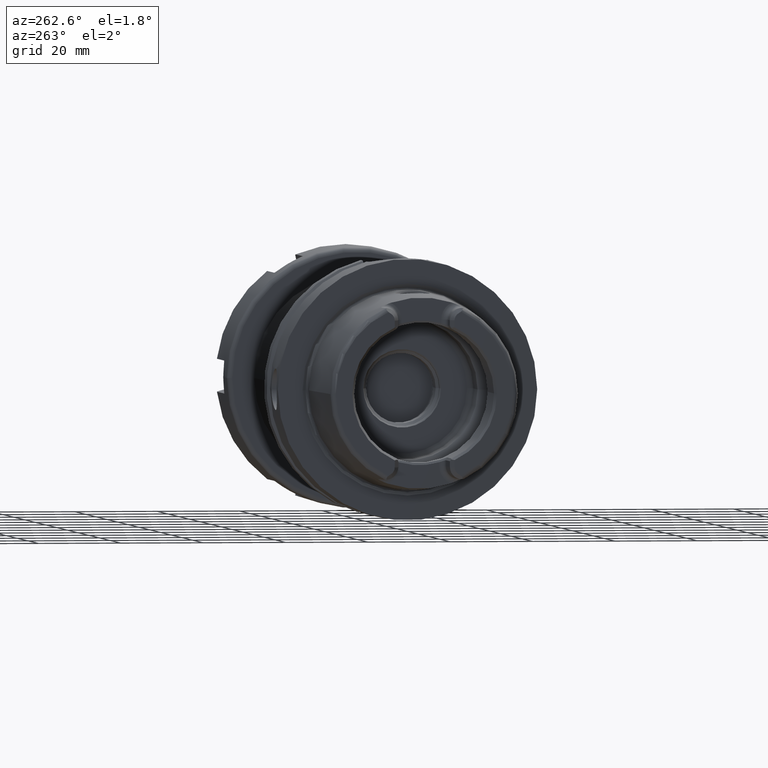
[diagram: clean part render]
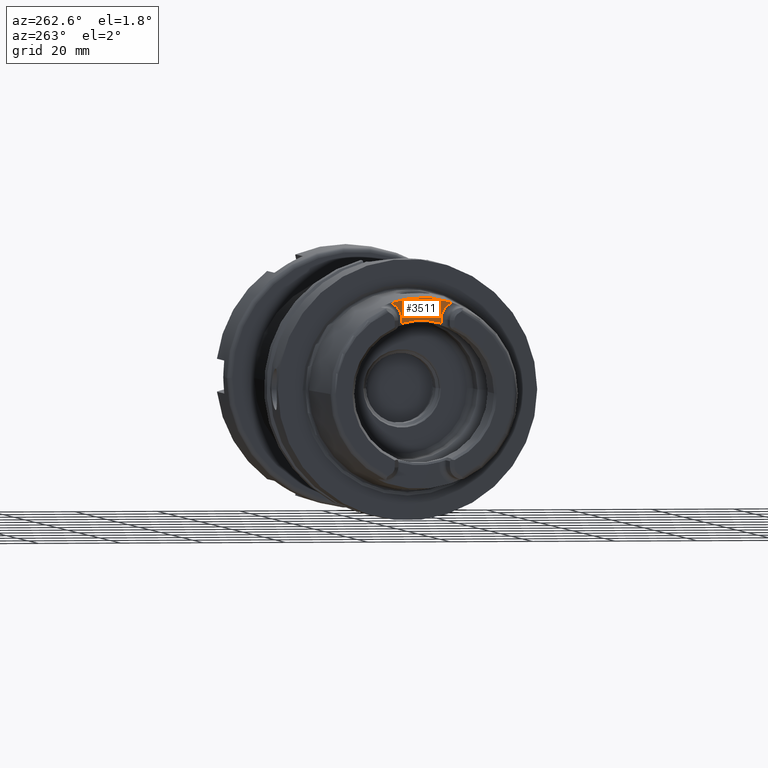
[diagram: same view with one face highlighted and labeled with its STEP entity id]
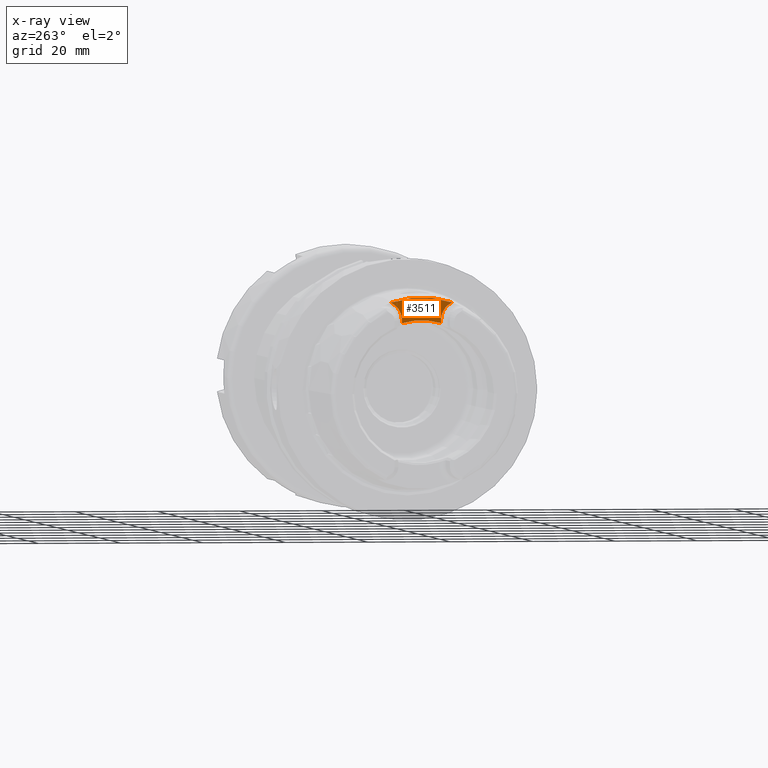
[diagram: x-ray of the same camera — body ghosted, the highlighted face saturated]
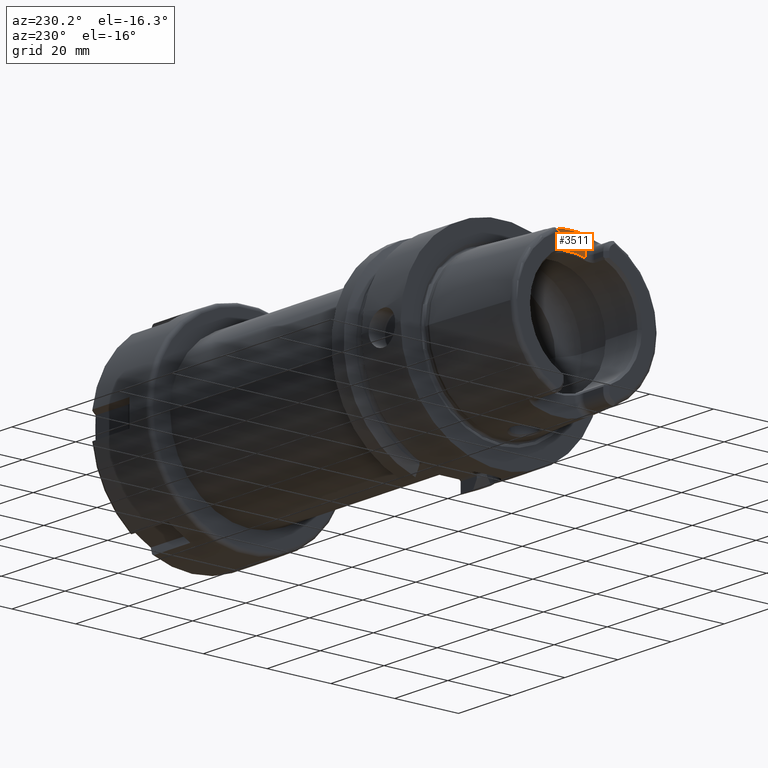
[diagram: same view with one face highlighted and labeled with its STEP entity id]
A machine part, auxiliary view. The second image highlights one B-rep face of the part: STEP entity #3511.
The next image is the same camera in x-ray: the body ghosted, the highlighted face saturated — about 0% of this face is hidden behind the body in this view.
A second angle (auxiliary view) of the same face is appended — the face is thin or edge-on in the first view.
In plain terms, the highlighted planar face has unit normal (-1, 0, 0).
Its self-contained STEP definition (entity closure, byte-faithful):
#9=CARTESIAN_POINT('',(-2.6E1,0.E0,0.E0));
#10=DIRECTION('',(1.E0,0.E0,0.E0));
#11=DIRECTION('',(0.E0,3.233021702202E-1,9.462957818415E-1));
#12=AXIS2_PLACEMENT_3D('',#9,#10,#11);
#508=DIRECTION('',(0.E0,1.645939623868E-11,1.E0));
#509=VECTOR('',#508,8.529199916087E-1);
#510=CARTESIAN_POINT('',(-2.6E1,4.769999999986E0,1.681708000839E1));
#511=LINE('',#510,#509);
#512=CARTESIAN_POINT('',(-2.6E1,9.27E0,1.767E1));
#513=DIRECTION('',(-1.E0,0.E0,0.E0));
#514=DIRECTION('',(0.E0,-1.E0,0.E0));
#515=AXIS2_PLACEMENT_3D('',#512,#513,#514);
#517=CARTESIAN_POINT('',(-2.6E1,-9.27E0,1.767E1));
#518=DIRECTION('',(-1.E0,0.E0,0.E0));
#519=DIRECTION('',(0.E0,4.062693958732E-1,9.137533463560E-1));
#520=AXIS2_PLACEMENT_3D('',#517,#518,#519);
#522=DIRECTION('',(0.E0,1.641566002193E-11,-1.E0));
#523=VECTOR('',#522,8.529199916084E-1);
#524=CARTESIAN_POINT('',(-2.6E1,-4.770000000001E0,1.767E1));
#525=LINE('',#524,#523);
#526=CARTESIAN_POINT('',(-2.6E1,4.769999999986E0,1.681708000839E1));
#527=CARTESIAN_POINT('',(-2.6E1,4.148583737710E0,1.699873969073E1));
#528=CARTESIAN_POINT('',(-2.6E1,2.894384068626E0,1.728890718055E1));
#529=CARTESIAN_POINT('',(-2.6E1,9.681288020921E-1,1.750922547308E1));
#530=CARTESIAN_POINT('',(-2.6E1,-9.681288020820E-1,1.750922547309E1));
#531=CARTESIAN_POINT('',(-2.6E1,-2.894384068607E0,1.728890718055E1));
#532=CARTESIAN_POINT('',(-2.6E1,-4.148583737703E0,1.699873969073E1));
#533=CARTESIAN_POINT('',(-2.6E1,-4.769999999987E0,1.681708000839E1));
#2661=CARTESIAN_POINT('',(-2.6E1,4.77E0,1.767E1));
#2663=VERTEX_POINT('',#2661);
#2665=CARTESIAN_POINT('',(-2.6E1,-4.77E0,1.767E1));
#2667=VERTEX_POINT('',#2665);
#2669=CARTESIAN_POINT('',(-2.6E1,7.441787718571E0,2.178189005860E1));
#2670=VERTEX_POINT('',#2669);
#2675=CARTESIAN_POINT('',(-2.6E1,-7.441787718571E0,2.178189005860E1));
#2676=VERTEX_POINT('',#2675);
#2713=CARTESIAN_POINT('',(-2.6E1,4.769999999986E0,1.681708000839E1));
#2714=VERTEX_POINT('',#2713);
#2715=CARTESIAN_POINT('',(-2.6E1,-4.769999999987E0,1.681708000839E1));
#2716=VERTEX_POINT('',#2715);
#3497=CARTESIAN_POINT('',(-2.6E1,0.E0,0.E0));
#3498=DIRECTION('',(-1.E0,0.E0,0.E0));
#3499=DIRECTION('',(0.E0,0.E0,1.E0));
#3500=AXIS2_PLACEMENT_3D('',#3497,#3498,#3499);
#3501=PLANE('',#3500);
#3502=ORIENTED_EDGE('',*,*,#3408,.T.);
#3503=ORIENTED_EDGE('',*,*,#3426,.T.);
#3504=ORIENTED_EDGE('',*,*,#3071,.T.);
#3505=ORIENTED_EDGE('',*,*,#3132,.T.);
#3506=ORIENTED_EDGE('',*,*,#3150,.T.);
#3508=ORIENTED_EDGE('',*,*,#3507,.F.);
#3509=EDGE_LOOP('',(#3502,#3503,#3504,#3505,#3506,#3508));
#3510=FACE_OUTER_BOUND('',#3509,.F.);
#3511=ADVANCED_FACE('',(#3510),#3501,.T.);
#13=CIRCLE('',#12,2.301805680272E1);
#516=CIRCLE('',#515,4.5E0);
#521=CIRCLE('',#520,4.5E0);
#534=B_SPLINE_CURVE_WITH_KNOTS('',3,(#526,#527,#528,#529,#530,#531,#532,#533),
.UNSPECIFIED.,.F.,.F.,(4,1,1,1,1,4),(0.E0,2.E-1,4.E-1,6.E-1,8.E-1,1.E0),
.UNSPECIFIED.);
#3071=EDGE_CURVE('',#2670,#2676,#13,.T.);
#3132=EDGE_CURVE('',#2676,#2667,#521,.T.);
#3150=EDGE_CURVE('',#2667,#2716,#525,.T.);
#3408=EDGE_CURVE('',#2714,#2663,#511,.T.);
#3426=EDGE_CURVE('',#2663,#2670,#516,.T.);
#3507=EDGE_CURVE('',#2714,#2716,#534,.T.);